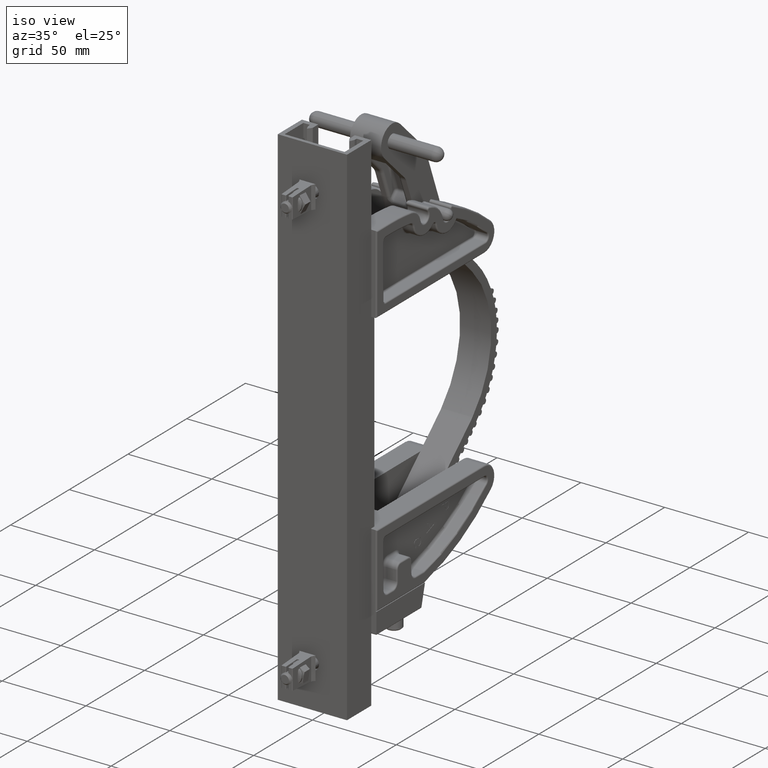
[diagram: clean part render]
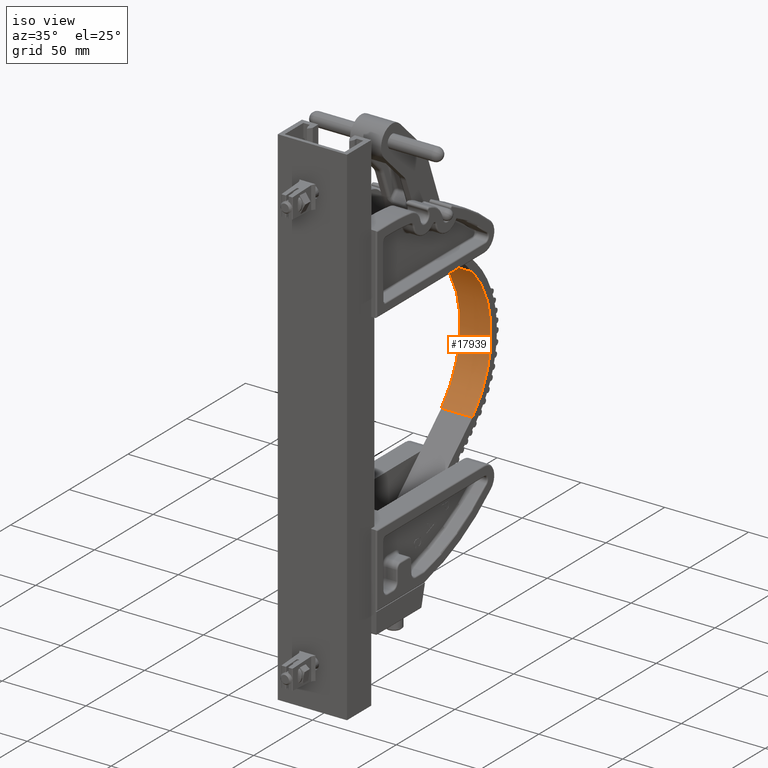
[diagram: same view with one face highlighted and labeled with its STEP entity id]
A machine part, iso view. The second image highlights one B-rep face of the part: STEP entity #17939.
In plain terms, the highlighted cylindrical surface (partial cylindrical patch) has radius 55.8829 mm, axis along (1, -0, -0).
Its self-contained STEP definition (entity closure, byte-faithful):
#281 = DIRECTION ( 'NONE',  ( 1.000000000000000000, 0.0000000000000000000, 0.0000000000000000000 ) ) ;
#2025 = CARTESIAN_POINT ( 'NONE',  ( -4.545612847459836700, -3.024906869476998100, 0.3649999999999999900 ) ) ;
#2253 = DIRECTION ( 'NONE',  ( 3.081487911019577400E-032, -4.930380657631323800E-032, -1.000000000000000000 ) ) ;
#2756 = CIRCLE ( 'NONE', #8771, 2.200112432374653700 ) ;
#4880 = DIRECTION ( 'NONE',  ( 1.000000000000000000, 0.0000000000000000000, 0.0000000000000000000 ) ) ;
#4907 = DIRECTION ( 'NONE',  ( 3.081487911019577400E-032, -4.930380657631323800E-032, -1.000000000000000000 ) ) ;
#7287 = LINE ( 'NONE', #19095, #36362 ) ;
#7340 = AXIS2_PLACEMENT_3D ( 'NONE', #14133, #19850, #11124 ) ;
#8666 = CARTESIAN_POINT ( 'NONE',  ( -6.745725279834490900, -3.024906869476998100, 0.3649999999999999900 ) ) ;
#8771 = AXIS2_PLACEMENT_3D ( 'NONE', #2025, #21897, #4880 ) ;
#9748 = VERTEX_POINT ( 'NONE', #28609 ) ;
#11124 = DIRECTION ( 'NONE',  ( -1.000000000000000000, 0.0000000000000000000, 0.0000000000000000000 ) ) ;
#11795 = CARTESIAN_POINT ( 'NONE',  ( -4.577124647166994200, -0.8250201174898131900, -0.3649999999999999900 ) ) ;
#13371 = VERTEX_POINT ( 'NONE', #11795 ) ;
#13760 = ORIENTED_EDGE ( 'NONE', *, *, #32425, .T. ) ;
#14133 = CARTESIAN_POINT ( 'NONE',  ( -4.545612847459836700, -3.024906869476998100, 0.3649999999999999900 ) ) ;
#15159 = AXIS2_PLACEMENT_3D ( 'NONE', #34093, #17315, #281 ) ;
#15828 = EDGE_CURVE ( 'NONE', #33787, #9748, #2756, .T. ) ;
#17315 = DIRECTION ( 'NONE',  ( 3.081487911019577400E-032, -4.930380657631323800E-032, -1.000000000000000000 ) ) ;
#17939 = ADVANCED_FACE ( 'NONE', ( #30050 ), #20906, .F. ) ;
#19095 = CARTESIAN_POINT ( 'NONE',  ( -4.577124647166994200, -0.8250201174898131900, 0.3649999999999999900 ) ) ;
#19126 = EDGE_CURVE ( 'NONE', #9748, #13371, #7287, .T. ) ;
#19850 = DIRECTION ( 'NONE',  ( 3.081487911019577400E-032, -4.930380657631323800E-032, -1.000000000000000000 ) ) ;
#20906 = CYLINDRICAL_SURFACE ( 'NONE', #7340, 2.200112432374654600 ) ;
#21079 = LINE ( 'NONE', #36056, #28524 ) ;
#21897 = DIRECTION ( 'NONE',  ( 3.081487911019577400E-032, -4.930380657631323800E-032, -1.000000000000000000 ) ) ;
#22528 = ORIENTED_EDGE ( 'NONE', *, *, #19126, .F. ) ;
#23329 = EDGE_CURVE ( 'NONE', #33080, #13371, #25263, .T. ) ;
#25263 = CIRCLE ( 'NONE', #15159, 2.200112432374653700 ) ;
#27172 = ORIENTED_EDGE ( 'NONE', *, *, #23329, .T. ) ;
#28524 = VECTOR ( 'NONE', #2253, 39.37007874015748100 ) ;
#28609 = CARTESIAN_POINT ( 'NONE',  ( -4.577124647166994200, -0.8250201174898131900, 0.3649999999999999900 ) ) ;
#29914 = EDGE_LOOP ( 'NONE', ( #31351, #13760, #27172, #22528 ) ) ;
#30050 = FACE_OUTER_BOUND ( 'NONE', #29914, .T. ) ;
#31351 = ORIENTED_EDGE ( 'NONE', *, *, #15828, .F. ) ;
#32425 = EDGE_CURVE ( 'NONE', #33787, #33080, #21079, .T. ) ;
#33080 = VERTEX_POINT ( 'NONE', #36486 ) ;
#33787 = VERTEX_POINT ( 'NONE', #8666 ) ;
#34093 = CARTESIAN_POINT ( 'NONE',  ( -4.545612847459836700, -3.024906869476998100, -0.3649999999999999900 ) ) ;
#36056 = CARTESIAN_POINT ( 'NONE',  ( -6.745725279834490900, -3.024906869476998100, 0.3649999999999999900 ) ) ;
#36362 = VECTOR ( 'NONE', #4907, 39.37007874015748100 ) ;
#36486 = CARTESIAN_POINT ( 'NONE',  ( -6.745725279834490900, -3.024906869476998100, -0.3649999999999999900 ) ) ;